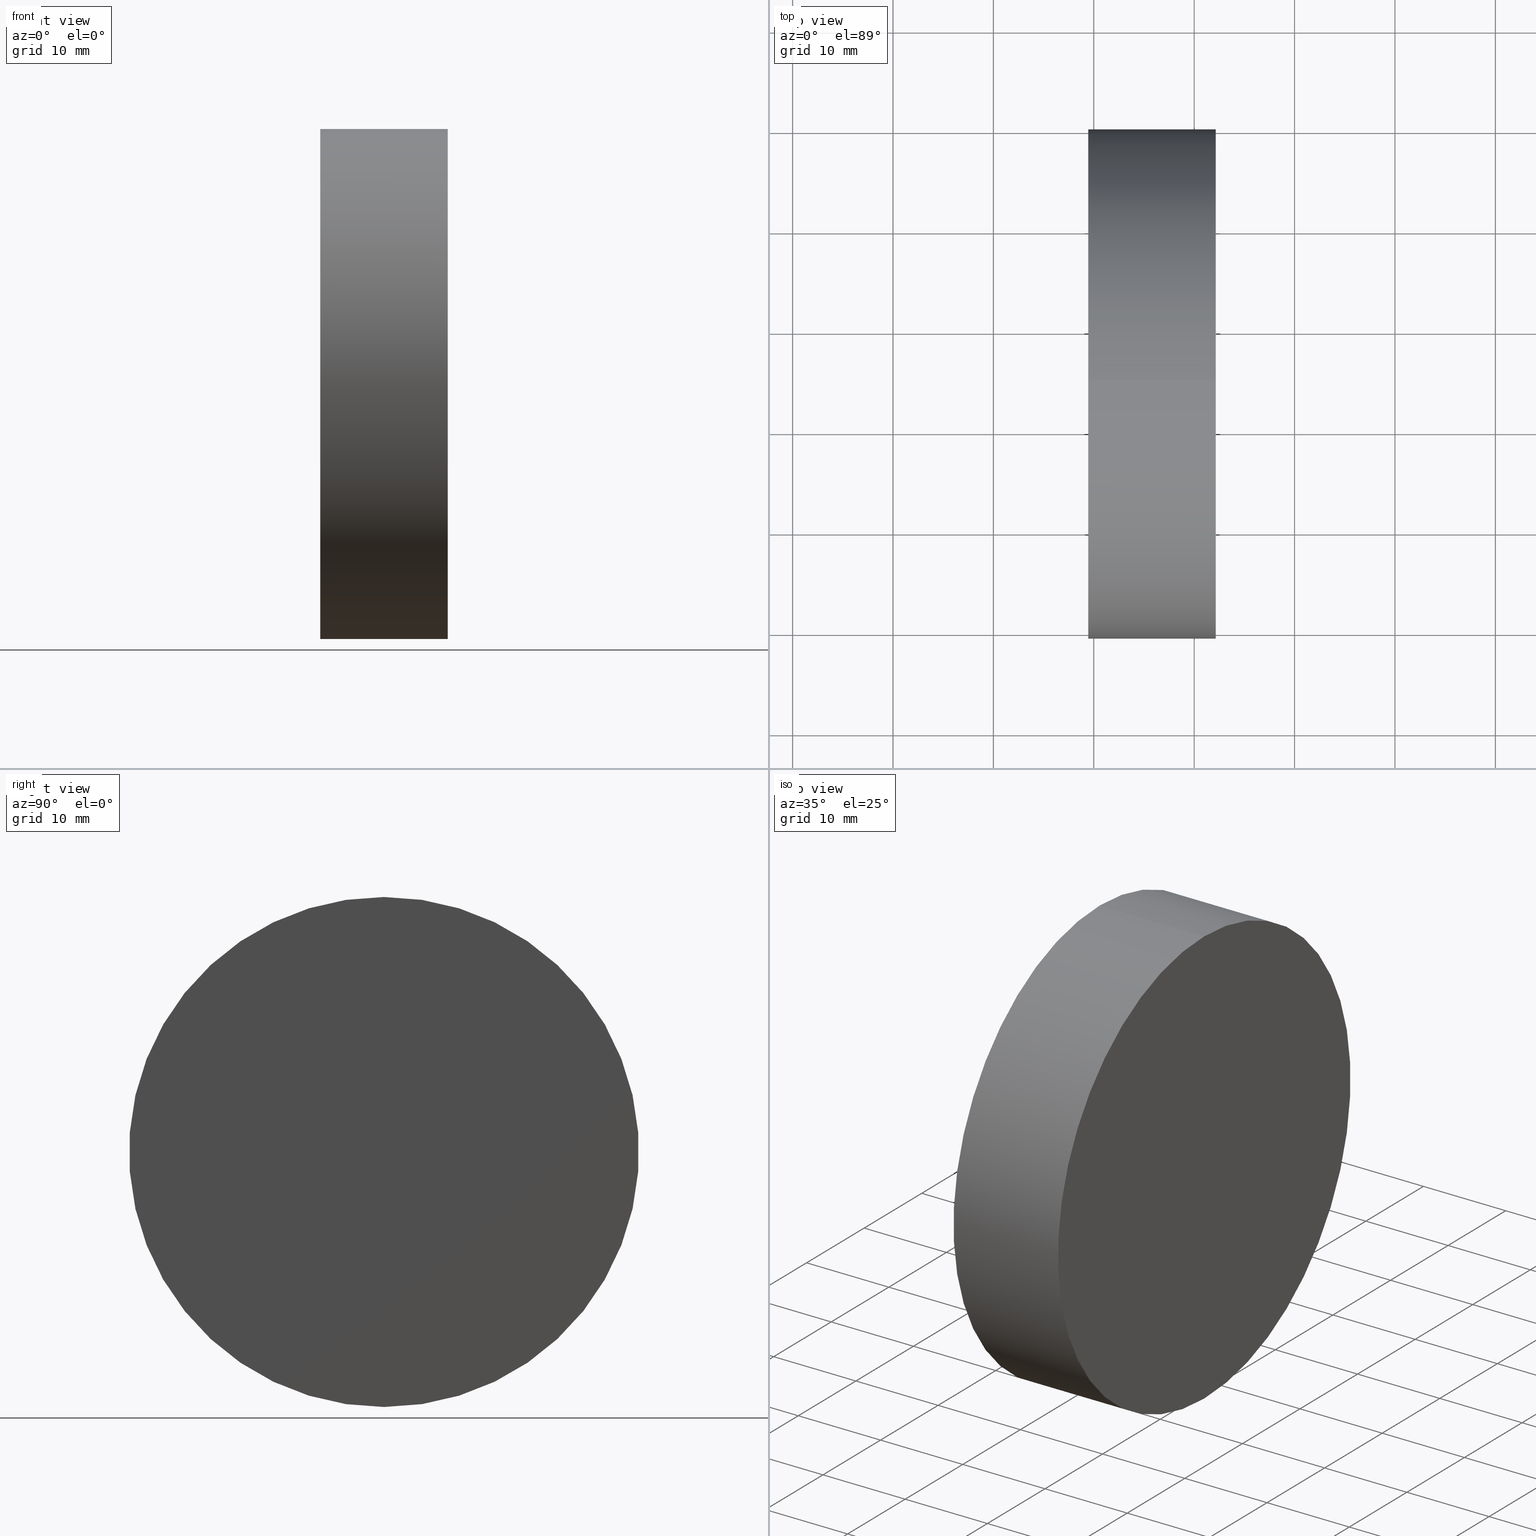
[diagram: canonical four-view strip — front | top / right | iso, engineering-drawing reading convention]
A machine part, canonical four-view strip (front | top / right | iso — engineering-drawing reading convention). The complete STEP part file that produces these views, byte-faithful:
ISO-10303-21;
HEADER;
FILE_DESCRIPTION (( 'STEP AP214' ),
    '1' );
FILE_NAME ('431023.STEP',
    '2019-08-23T06:47:16',
    ( '' ),
    ( '' ),
    'SwSTEP 2.0',
    'SolidWorks 2016',
    '' );
FILE_SCHEMA (( 'AUTOMOTIVE_DESIGN' ));
ENDSEC;

DATA;
#1 = ORIENTED_EDGE ( 'NONE', *, *, #132, .T. ) ;
#2 = VECTOR ( 'NONE', #22, 1000.000000000000000 ) ;
#3 = PRESENTATION_LAYER_ASSIGNMENT (  '', '', ( #55 ) ) ;
#4 =( LENGTH_UNIT ( ) NAMED_UNIT ( * ) SI_UNIT ( .MILLI., .METRE. ) );
#5 = VECTOR ( 'NONE', #50, 1000.000000000000000 ) ;
#6 = EDGE_CURVE ( 'NONE', #100, #66, #48, .T. ) ;
#7 = PLANE ( 'NONE',  #56 ) ;
#8 =( NAMED_UNIT ( * ) PLANE_ANGLE_UNIT ( ) SI_UNIT ( $, .RADIAN. ) );
#9 = MECHANICAL_DESIGN_GEOMETRIC_PRESENTATION_REPRESENTATION (  '', ( #88 ), #78 ) ;
#10 = VERTEX_POINT ( 'NONE', #18 ) ;
#11 = CARTESIAN_POINT ( 'NONE',  ( 0.0000000000000000000, 0.0000000000000000000, 0.0000000000000000000 ) ) ;
#12 = PRODUCT_DEFINITION ( 'δ֪', '', #97, #25 ) ;
#13 = CIRCLE ( 'NONE', #86, 25.40000000000000600 ) ;
#14 = EDGE_LOOP ( 'NONE', ( #34, #1, #63, #20 ) ) ;
#15 = AXIS2_PLACEMENT_3D ( 'NONE', #79, #102, #40 ) ;
#16 = ADVANCED_BREP_SHAPE_REPRESENTATION ( '431023', ( #139, #39 ), #131 ) ;
#17 = ORIENTED_EDGE ( 'NONE', *, *, #107, .F. ) ;
#18 = CARTESIAN_POINT ( 'NONE',  ( 532.1487057861286300, 154.5863586980308400, -25.40000000000000600 ) ) ;
#19 = CARTESIAN_POINT ( 'NONE',  ( 532.1487057861286300, 154.5863586980308400, 25.40000000000000600 ) ) ;
#20 = ORIENTED_EDGE ( 'NONE', *, *, #52, .F. ) ;
#21 = FILL_AREA_STYLE_COLOUR ( '', #26 ) ;
#22 = DIRECTION ( 'NONE',  ( -1.000000000000000000, -0.0000000000000000000, -0.0000000000000000000 ) ) ;
#23 =( NAMED_UNIT ( * ) SI_UNIT ( $, .STERADIAN. ) SOLID_ANGLE_UNIT ( ) );
#24 = AXIS2_PLACEMENT_3D ( 'NONE', #89, #68, #133 ) ;
#25 = PRODUCT_DEFINITION_CONTEXT ( 'detailed design', #125, 'design' ) ;
#26 = COLOUR_RGB ( '',1.000000000000000000, 1.000000000000000000, 1.000000000000000000 ) ;
#27 = PRESENTATION_LAYER_ASSIGNMENT (  '', '', ( #88 ) ) ;
#28 = ORIENTED_EDGE ( 'NONE', *, *, #52, .T. ) ;
#29 = DIRECTION ( 'NONE',  ( 0.0000000000000000000, 0.0000000000000000000, 1.000000000000000000 ) ) ;
#30 = CYLINDRICAL_SURFACE ( 'NONE', #47, 25.40000000000000600 ) ;
#31 = PRODUCT_CONTEXT ( 'NONE', #77, 'mechanical' ) ;
#32 = CARTESIAN_POINT ( 'NONE',  ( 532.1487057861286300, 154.5863586980308400, 0.0000000000000000000 ) ) ;
#33 =( NAMED_UNIT ( * ) SI_UNIT ( $, .STERADIAN. ) SOLID_ANGLE_UNIT ( ) );
#34 = ORIENTED_EDGE ( 'NONE', *, *, #123, .F. ) ;
#35 = CIRCLE ( 'NONE', #70, 25.40000000000000600 ) ;
#36 = AXIS2_PLACEMENT_3D ( 'NONE', #82, #91, #127 ) ;
#37 = CARTESIAN_POINT ( 'NONE',  ( 508.0016039852320700, 154.5863586980308400, 0.0000000000000000000 ) ) ;
#38 = EDGE_LOOP ( 'NONE', ( #121, #28 ) ) ;
#39 = AXIS2_PLACEMENT_3D ( 'NONE', #11, #85, #54 ) ;
#40 = DIRECTION ( 'NONE',  ( 0.0000000000000000000, 0.0000000000000000000, -1.000000000000000000 ) ) ;
#41 = DIRECTION ( 'NONE',  ( 0.0000000000000000000, 0.0000000000000000000, 1.000000000000000000 ) ) ;
#42 = CYLINDRICAL_SURFACE ( 'NONE', #24, 25.40000000000000600 ) ;
#43 = ADVANCED_FACE ( 'NONE', ( #75 ), #67, .F. ) ;
#44 =( LENGTH_UNIT ( ) NAMED_UNIT ( * ) SI_UNIT ( .MILLI., .METRE. ) );
#45 = ORIENTED_EDGE ( 'NONE', *, *, #123, .T. ) ;
#46 = FILL_AREA_STYLE ('',( #21 ) ) ;
#47 = AXIS2_PLACEMENT_3D ( 'NONE', #37, #69, #110 ) ;
#48 = LINE ( 'NONE', #58, #5 ) ;
#49 = ORIENTED_EDGE ( 'NONE', *, *, #117, .F. ) ;
#50 = DIRECTION ( 'NONE',  ( -1.000000000000000000, -0.0000000000000000000, -0.0000000000000000000 ) ) ;
#51 = CARTESIAN_POINT ( 'NONE',  ( 519.4487057861285800, 154.5863586980308400, 0.0000000000000000000 ) ) ;
#52 = EDGE_CURVE ( 'NONE', #98, #66, #13, .T. ) ;
#53 = FILL_AREA_STYLE ('',( #73 ) ) ;
#54 = DIRECTION ( 'NONE',  ( 1.000000000000000000, 0.0000000000000000000, 0.0000000000000000000 ) ) ;
#55 = STYLED_ITEM ( 'NONE', ( #87 ), #139 ) ;
#56 = AXIS2_PLACEMENT_3D ( 'NONE', #80, #90, #83 ) ;
#57 = CARTESIAN_POINT ( 'NONE',  ( 519.4487057861285800, 154.5863586980308400, -25.40000000000000600 ) ) ;
#58 = CARTESIAN_POINT ( 'NONE',  ( 508.0016039852320700, 154.5863586980308400, 25.40000000000000600 ) ) ;
#59 = DIRECTION ( 'NONE',  ( -1.000000000000000000, -0.0000000000000000000, -0.0000000000000000000 ) ) ;
#60 = ADVANCED_FACE ( 'NONE', ( #120 ), #30, .T. ) ;
#61 = SURFACE_SIDE_STYLE ('',( #96 ) ) ;
#62 = SURFACE_SIDE_STYLE ('',( #135 ) ) ;
#63 = ORIENTED_EDGE ( 'NONE', *, *, #6, .T. ) ;
#64 = ORIENTED_EDGE ( 'NONE', *, *, #132, .F. ) ;
#65 = UNCERTAINTY_MEASURE_WITH_UNIT (LENGTH_MEASURE( 1.000000000000000100E-005 ), #115, 'distance_accuracy_value', 'NONE');
#66 = VERTEX_POINT ( 'NONE', #92 ) ;
#67 = PLANE ( 'NONE',  #15 ) ;
#68 = DIRECTION ( 'NONE',  ( -1.000000000000000000, -0.0000000000000000000, -0.0000000000000000000 ) ) ;
#69 = DIRECTION ( 'NONE',  ( -1.000000000000000000, -0.0000000000000000000, -0.0000000000000000000 ) ) ;
#70 = AXIS2_PLACEMENT_3D ( 'NONE', #126, #137, #71 ) ;
#71 = DIRECTION ( 'NONE',  ( 0.0000000000000000000, 0.0000000000000000000, 1.000000000000000000 ) ) ;
#72 = ADVANCED_FACE ( 'NONE', ( #94 ), #42, .T. ) ;
#73 = FILL_AREA_STYLE_COLOUR ( '', #124 ) ;
#74 = FACE_OUTER_BOUND ( 'NONE', #130, .T. ) ;
#75 = FACE_OUTER_BOUND ( 'NONE', #38, .T. ) ;
#76 = MECHANICAL_DESIGN_GEOMETRIC_PRESENTATION_REPRESENTATION (  '', ( #55 ), #122 ) ;
#77 = APPLICATION_CONTEXT ( 'automotive_design' ) ;
#78 =( GEOMETRIC_REPRESENTATION_CONTEXT ( 3 ) GLOBAL_UNCERTAINTY_ASSIGNED_CONTEXT ( ( #128 ) ) GLOBAL_UNIT_ASSIGNED_CONTEXT ( ( #44, #95, #33 ) ) REPRESENTATION_CONTEXT ( 'NONE', 'WORKASPACE' ) );
#79 = CARTESIAN_POINT ( 'NONE',  ( 519.4487057861285800, 154.5863586980308400, 0.0000000000000000000 ) ) ;
#80 = CARTESIAN_POINT ( 'NONE',  ( 532.1487057861286300, 154.5863586980308400, 0.0000000000000000000 ) ) ;
#81 = ORIENTED_EDGE ( 'NONE', *, *, #6, .F. ) ;
#82 = CARTESIAN_POINT ( 'NONE',  ( 519.4487057861285800, 154.5863586980308400, 0.0000000000000000000 ) ) ;
#83 = DIRECTION ( 'NONE',  ( -0.0000000000000000000, 0.0000000000000000000, 1.000000000000000000 ) ) ;
#84 = ADVANCED_FACE ( 'NONE', ( #74 ), #7, .F. ) ;
#85 = DIRECTION ( 'NONE',  ( 0.0000000000000000000, 0.0000000000000000000, 1.000000000000000000 ) ) ;
#86 = AXIS2_PLACEMENT_3D ( 'NONE', #51, #112, #29 ) ;
#87 = PRESENTATION_STYLE_ASSIGNMENT (( #114 ) ) ;
#88 = STYLED_ITEM ( 'NONE', ( #105 ), #16 ) ;
#89 = CARTESIAN_POINT ( 'NONE',  ( 508.0016039852320700, 154.5863586980308400, 0.0000000000000000000 ) ) ;
#90 = DIRECTION ( 'NONE',  ( -1.000000000000000000, 0.0000000000000000000, -0.0000000000000000000 ) ) ;
#91 = DIRECTION ( 'NONE',  ( -1.000000000000000000, -0.0000000000000000000, -0.0000000000000000000 ) ) ;
#92 = CARTESIAN_POINT ( 'NONE',  ( 519.4487057861285800, 154.5863586980308400, 25.40000000000000600 ) ) ;
#93 =( NAMED_UNIT ( * ) PLANE_ANGLE_UNIT ( ) SI_UNIT ( $, .RADIAN. ) );
#94 = FACE_OUTER_BOUND ( 'NONE', #108, .T. ) ;
#95 =( NAMED_UNIT ( * ) PLANE_ANGLE_UNIT ( ) SI_UNIT ( $, .RADIAN. ) );
#96 = SURFACE_STYLE_FILL_AREA ( #53 ) ;
#97 = PRODUCT_DEFINITION_FORMATION_WITH_SPECIFIED_SOURCE ( '�κ�', '', #134, .NOT_KNOWN. ) ;
#98 = VERTEX_POINT ( 'NONE', #57 ) ;
#99 = PRODUCT_DEFINITION_SHAPE ( 'NONE', 'NONE',  #12 ) ;
#100 = VERTEX_POINT ( 'NONE', #19 ) ;
#101 = CARTESIAN_POINT ( 'NONE',  ( 508.0016039852320700, 154.5863586980308400, -25.40000000000000600 ) ) ;
#102 = DIRECTION ( 'NONE',  ( 1.000000000000000000, 0.0000000000000000000, 0.0000000000000000000 ) ) ;
#103 = APPLICATION_PROTOCOL_DEFINITION ( 'draft international standard', 'automotive_design', 1998, #77 ) ;
#104 =( NAMED_UNIT ( * ) SI_UNIT ( $, .STERADIAN. ) SOLID_ANGLE_UNIT ( ) );
#105 = PRESENTATION_STYLE_ASSIGNMENT (( #136 ) ) ;
#106 = CIRCLE ( 'NONE', #36, 25.40000000000000600 ) ;
#107 = EDGE_CURVE ( 'NONE', #66, #98, #106, .T. ) ;
#108 = EDGE_LOOP ( 'NONE', ( #119, #45, #17, #81 ) ) ;
#109 = LINE ( 'NONE', #101, #2 ) ;
#110 = DIRECTION ( 'NONE',  ( 0.0000000000000000000, 0.0000000000000000000, 1.000000000000000000 ) ) ;
#111 = CLOSED_SHELL ( 'NONE', ( #72, #43, #60, #84 ) ) ;
#112 = DIRECTION ( 'NONE',  ( -1.000000000000000000, -0.0000000000000000000, -0.0000000000000000000 ) ) ;
#113 = UNCERTAINTY_MEASURE_WITH_UNIT (LENGTH_MEASURE( 1.000000000000000100E-005 ), #4, 'distance_accuracy_value', 'NONE');
#114 = SURFACE_STYLE_USAGE ( .BOTH. , #61 ) ;
#115 =( LENGTH_UNIT ( ) NAMED_UNIT ( * ) SI_UNIT ( .MILLI., .METRE. ) );
#116 = APPLICATION_PROTOCOL_DEFINITION ( 'draft international standard', 'automotive_design', 1998, #125 ) ;
#117 = EDGE_CURVE ( 'NONE', #100, #10, #35, .T. ) ;
#118 = PRODUCT_RELATED_PRODUCT_CATEGORY ( 'part', '', ( #134 ) ) ;
#119 = ORIENTED_EDGE ( 'NONE', *, *, #117, .T. ) ;
#120 = FACE_OUTER_BOUND ( 'NONE', #14, .T. ) ;
#121 = ORIENTED_EDGE ( 'NONE', *, *, #107, .T. ) ;
#122 =( GEOMETRIC_REPRESENTATION_CONTEXT ( 3 ) GLOBAL_UNCERTAINTY_ASSIGNED_CONTEXT ( ( #65 ) ) GLOBAL_UNIT_ASSIGNED_CONTEXT ( ( #115, #93, #104 ) ) REPRESENTATION_CONTEXT ( 'NONE', 'WORKASPACE' ) );
#123 = EDGE_CURVE ( 'NONE', #10, #98, #109, .T. ) ;
#124 = COLOUR_RGB ( '',1.000000000000000000, 1.000000000000000000, 1.000000000000000000 ) ;
#125 = APPLICATION_CONTEXT ( 'automotive_design' ) ;
#126 = CARTESIAN_POINT ( 'NONE',  ( 532.1487057861286300, 154.5863586980308400, 0.0000000000000000000 ) ) ;
#127 = DIRECTION ( 'NONE',  ( 0.0000000000000000000, 0.0000000000000000000, 1.000000000000000000 ) ) ;
#128 = UNCERTAINTY_MEASURE_WITH_UNIT (LENGTH_MEASURE( 1.000000000000000100E-005 ), #44, 'distance_accuracy_value', 'NONE');
#129 = CIRCLE ( 'NONE', #138, 25.40000000000000600 ) ;
#130 = EDGE_LOOP ( 'NONE', ( #49, #64 ) ) ;
#131 =( GEOMETRIC_REPRESENTATION_CONTEXT ( 3 ) GLOBAL_UNCERTAINTY_ASSIGNED_CONTEXT ( ( #113 ) ) GLOBAL_UNIT_ASSIGNED_CONTEXT ( ( #4, #8, #23 ) ) REPRESENTATION_CONTEXT ( 'NONE', 'WORKASPACE' ) );
#132 = EDGE_CURVE ( 'NONE', #10, #100, #129, .T. ) ;
#133 = DIRECTION ( 'NONE',  ( 0.0000000000000000000, 0.0000000000000000000, 1.000000000000000000 ) ) ;
#134 = PRODUCT ( '431023', '431023', '', ( #31 ) ) ;
#135 = SURFACE_STYLE_FILL_AREA ( #46 ) ;
#136 = SURFACE_STYLE_USAGE ( .BOTH. , #62 ) ;
#137 = DIRECTION ( 'NONE',  ( -1.000000000000000000, -0.0000000000000000000, -0.0000000000000000000 ) ) ;
#138 = AXIS2_PLACEMENT_3D ( 'NONE', #32, #59, #41 ) ;
#139 = MANIFOLD_SOLID_BREP ( '��ת1', #111 ) ;
#140 = SHAPE_DEFINITION_REPRESENTATION ( #99, #16 ) ;
ENDSEC;
END-ISO-10303-21;
